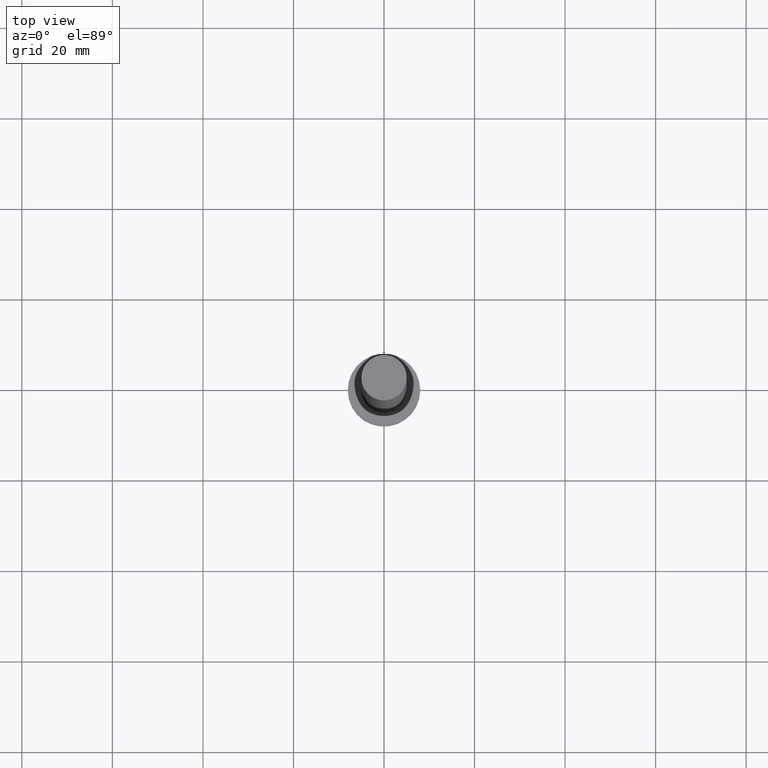
[diagram: clean part render]
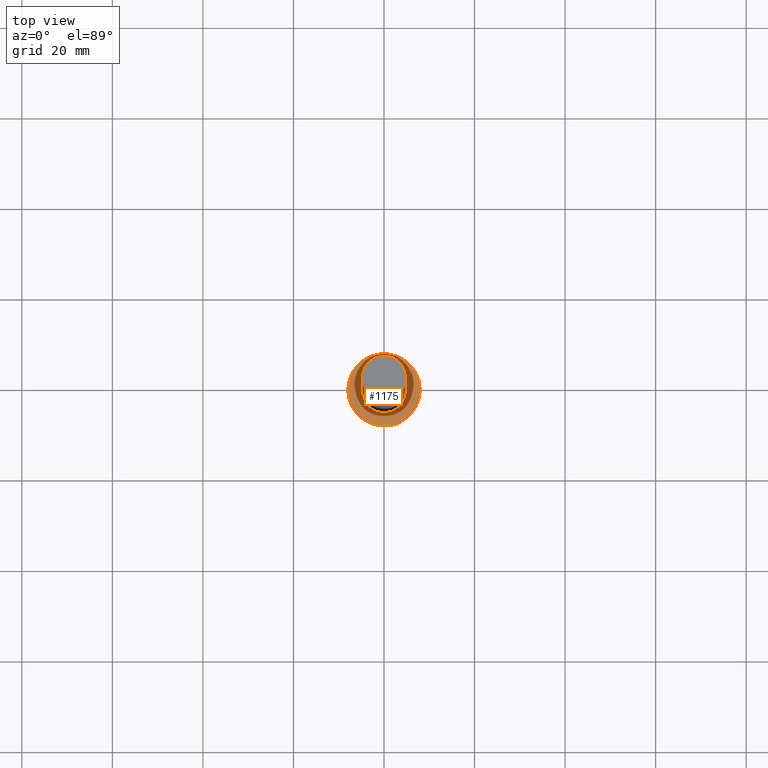
[diagram: same view with one face highlighted and labeled with its STEP entity id]
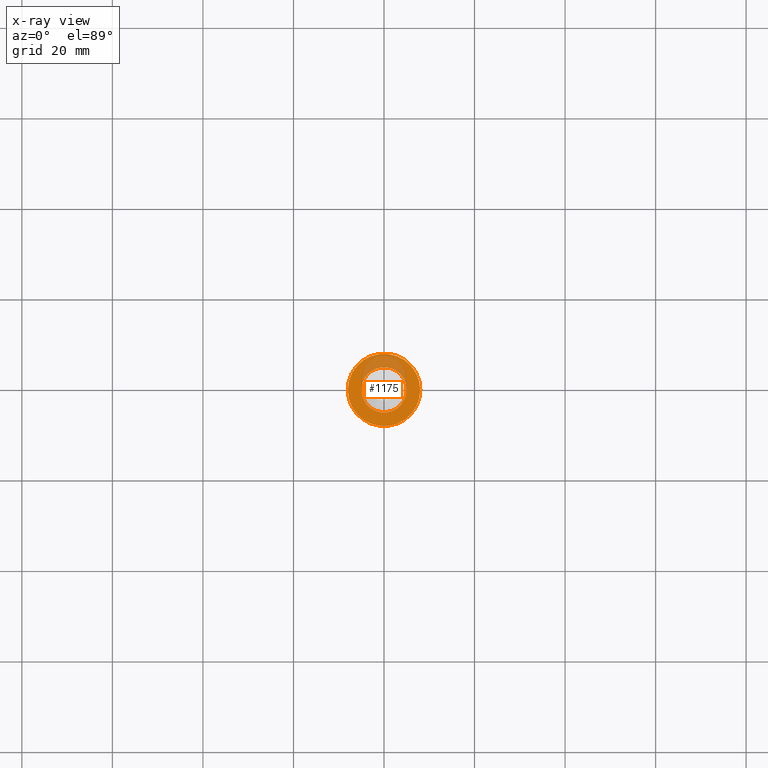
[diagram: x-ray of the same camera — body ghosted, the highlighted face saturated]
A machine part, top view. The second image highlights one B-rep face of the part: STEP entity #1175.
The next image is the same camera in x-ray: the body ghosted, the highlighted face saturated — about 22% of this face is hidden behind the body in this view.
In plain terms, the highlighted planar face has unit normal (0, 0, 1).
Its self-contained STEP definition (entity closure, byte-faithful):
#31 = AXIS2_PLACEMENT_3D ( 'NONE', #1620, #1612, #1378 ) ;
#110 = AXIS2_PLACEMENT_3D ( 'NONE', #317, #821, #937 ) ;
#126 = DIRECTION ( 'NONE',  ( 0.000000000000000000, 0.000000000000000000, 1.000000000000000000 ) ) ;
#160 = VERTEX_POINT ( 'NONE', #412 ) ;
#162 = CIRCLE ( 'NONE', #401, 8.000000000000000000 ) ;
#177 = DIRECTION ( 'NONE',  ( 1.000000000000000000, 0.000000000000000000, 0.000000000000000000 ) ) ;
#190 = EDGE_LOOP ( 'NONE', ( #1047, #801 ) ) ;
#193 = CARTESIAN_POINT ( 'NONE',  ( 8.000000000000000000, 9.797174393178825657E-16, 5.000000000000000000 ) ) ;
#215 = AXIS2_PLACEMENT_3D ( 'NONE', #1456, #1062, #177 ) ;
#258 = CARTESIAN_POINT ( 'NONE',  ( -5.000000000000000000, 0.000000000000000000, 5.000000000000000000 ) ) ;
#264 = ORIENTED_EDGE ( 'NONE', *, *, #748, .F. ) ;
#317 = CARTESIAN_POINT ( 'NONE',  ( 0.000000000000000000, 0.000000000000000000, 5.000000000000000000 ) ) ;
#401 = AXIS2_PLACEMENT_3D ( 'NONE', #870, #607, #1127 ) ;
#412 = CARTESIAN_POINT ( 'NONE',  ( 5.000000000000000000, 6.123233995736766282E-16, 5.000000000000000000 ) ) ;
#458 = CIRCLE ( 'NONE', #215, 5.000000000000000000 ) ;
#506 = FACE_OUTER_BOUND ( 'NONE', #190, .T. ) ;
#514 = VERTEX_POINT ( 'NONE', #258 ) ;
#531 = FACE_BOUND ( 'NONE', #1134, .T. ) ;
#607 = DIRECTION ( 'NONE',  ( 0.000000000000000000, 0.000000000000000000, 1.000000000000000000 ) ) ;
#633 = CARTESIAN_POINT ( 'NONE',  ( 0.000000000000000000, 0.000000000000000000, 5.000000000000000000 ) ) ;
#652 = PLANE ( 'NONE',  #1477 ) ;
#748 = EDGE_CURVE ( 'NONE', #514, #160, #891, .T. ) ;
#791 = ORIENTED_EDGE ( 'NONE', *, *, #914, .F. ) ;
#801 = ORIENTED_EDGE ( 'NONE', *, *, #1017, .T. ) ;
#821 = DIRECTION ( 'NONE',  ( 0.000000000000000000, 0.000000000000000000, 1.000000000000000000 ) ) ;
#870 = CARTESIAN_POINT ( 'NONE',  ( 0.000000000000000000, 0.000000000000000000, 5.000000000000000000 ) ) ;
#891 = CIRCLE ( 'NONE', #110, 5.000000000000000000 ) ;
#914 = EDGE_CURVE ( 'NONE', #160, #514, #458, .T. ) ;
#937 = DIRECTION ( 'NONE',  ( 1.000000000000000000, 0.000000000000000000, 0.000000000000000000 ) ) ;
#1017 = EDGE_CURVE ( 'NONE', #1323, #1329, #1420, .T. ) ;
#1047 = ORIENTED_EDGE ( 'NONE', *, *, #1626, .T. ) ;
#1062 = DIRECTION ( 'NONE',  ( 0.000000000000000000, 0.000000000000000000, 1.000000000000000000 ) ) ;
#1127 = DIRECTION ( 'NONE',  ( 1.000000000000000000, 0.000000000000000000, 0.000000000000000000 ) ) ;
#1134 = EDGE_LOOP ( 'NONE', ( #264, #791 ) ) ;
#1175 = ADVANCED_FACE ( 'NONE', ( #531, #506 ), #652, .T. ) ;
#1323 = VERTEX_POINT ( 'NONE', #193 ) ;
#1329 = VERTEX_POINT ( 'NONE', #1484 ) ;
#1378 = DIRECTION ( 'NONE',  ( 1.000000000000000000, 0.000000000000000000, 0.000000000000000000 ) ) ;
#1420 = CIRCLE ( 'NONE', #31, 8.000000000000000000 ) ;
#1456 = CARTESIAN_POINT ( 'NONE',  ( 0.000000000000000000, 0.000000000000000000, 5.000000000000000000 ) ) ;
#1477 = AXIS2_PLACEMENT_3D ( 'NONE', #633, #126, #1550 ) ;
#1484 = CARTESIAN_POINT ( 'NONE',  ( -8.000000000000000000, 0.000000000000000000, 5.000000000000000000 ) ) ;
#1550 = DIRECTION ( 'NONE',  ( 1.000000000000000000, 0.000000000000000000, -0.000000000000000000 ) ) ;
#1612 = DIRECTION ( 'NONE',  ( 0.000000000000000000, 0.000000000000000000, 1.000000000000000000 ) ) ;
#1620 = CARTESIAN_POINT ( 'NONE',  ( 0.000000000000000000, 0.000000000000000000, 5.000000000000000000 ) ) ;
#1626 = EDGE_CURVE ( 'NONE', #1329, #1323, #162, .T. ) ;